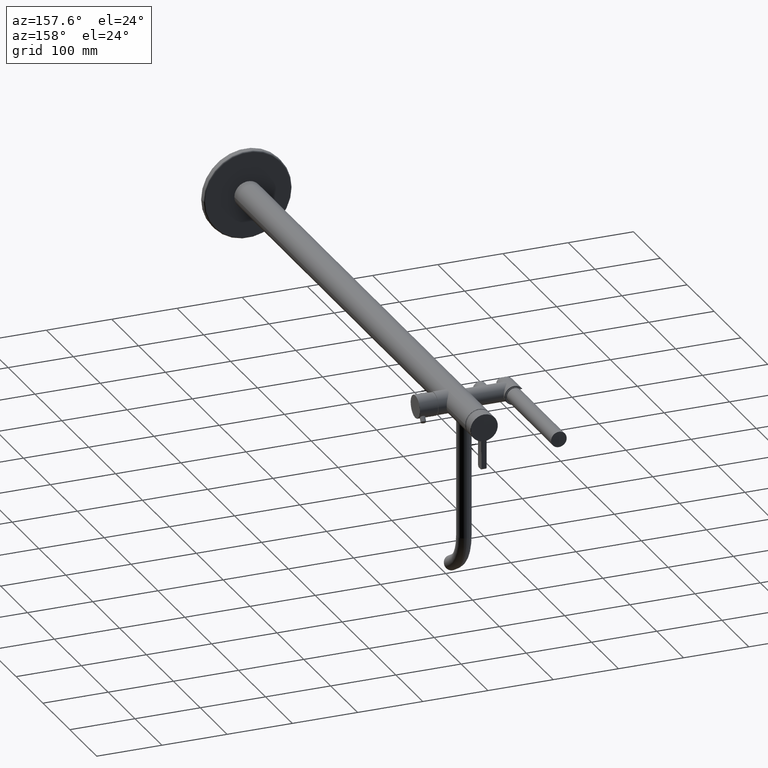
[diagram: clean part render]
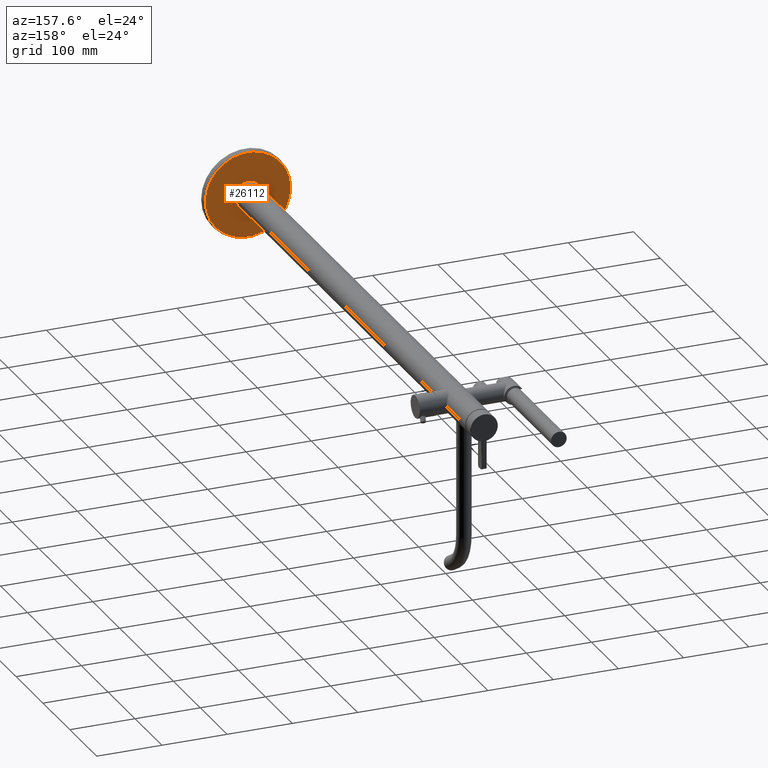
[diagram: same view with one face highlighted and labeled with its STEP entity id]
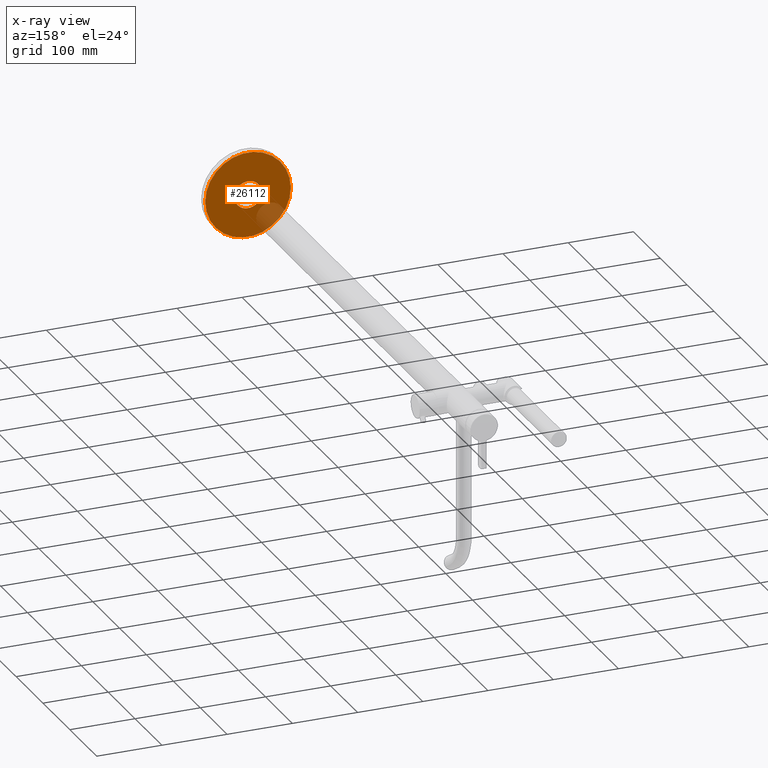
[diagram: x-ray of the same camera — body ghosted, the highlighted face saturated]
A machine part, auxiliary view. The second image highlights one B-rep face of the part: STEP entity #26112.
The next image is the same camera in x-ray: the body ghosted, the highlighted face saturated — about 10% of this face is hidden behind the body in this view.
In plain terms, the highlighted planar face has unit normal (0, -1, 0).
Its self-contained STEP definition (entity closure, byte-faithful):
#10192=CARTESIAN_POINT('',(0.E0,6.45E1,0.E0));
#10193=DIRECTION('',(0.E0,-1.E0,0.E0));
#10194=DIRECTION('',(1.E0,0.E0,0.E0));
#10195=AXIS2_PLACEMENT_3D('',#10192,#10193,#10194);
#10433=CARTESIAN_POINT('',(0.E0,6.45E1,0.E0));
#10434=DIRECTION('',(0.E0,1.E0,0.E0));
#10435=DIRECTION('',(1.E0,0.E0,0.E0));
#10436=AXIS2_PLACEMENT_3D('',#10433,#10434,#10435);
#10438=CARTESIAN_POINT('',(0.E0,6.45E1,0.E0));
#10439=DIRECTION('',(0.E0,1.E0,0.E0));
#10440=DIRECTION('',(-1.E0,0.E0,0.E0));
#10441=AXIS2_PLACEMENT_3D('',#10438,#10439,#10440);
#10659=CARTESIAN_POINT('',(0.E0,6.45E1,0.E0));
#10660=DIRECTION('',(0.E0,-1.E0,0.E0));
#10661=DIRECTION('',(-1.E0,0.E0,0.E0));
#10662=AXIS2_PLACEMENT_3D('',#10659,#10660,#10661);
#19351=CARTESIAN_POINT('',(6.55E1,6.45E1,0.E0));
#19352=CARTESIAN_POINT('',(-6.55E1,6.45E1,-1.604286306883E-14));
#19353=VERTEX_POINT('',#19351);
#19354=VERTEX_POINT('',#19352);
#20286=CARTESIAN_POINT('',(2.1E1,6.45E1,0.E0));
#20287=CARTESIAN_POINT('',(-2.1E1,6.45E1,0.E0));
#20288=VERTEX_POINT('',#20286);
#20289=VERTEX_POINT('',#20287);
#26096=CARTESIAN_POINT('',(0.E0,6.45E1,0.E0));
#26097=DIRECTION('',(0.E0,-1.E0,0.E0));
#26098=DIRECTION('',(-1.E0,0.E0,0.E0));
#26099=AXIS2_PLACEMENT_3D('',#26096,#26097,#26098);
#26100=PLANE('',#26099);
#26102=ORIENTED_EDGE('',*,*,#26101,.F.);
#26104=ORIENTED_EDGE('',*,*,#26103,.F.);
#26105=EDGE_LOOP('',(#26102,#26104));
#26106=FACE_OUTER_BOUND('',#26105,.F.);
#26107=ORIENTED_EDGE('',*,*,#26074,.F.);
#26109=ORIENTED_EDGE('',*,*,#26108,.F.);
#26110=EDGE_LOOP('',(#26107,#26109));
#26111=FACE_BOUND('',#26110,.F.);
#26112=ADVANCED_FACE('',(#26106,#26111),#26100,.F.);
#10196=CIRCLE('',#10195,2.1E1);
#10437=CIRCLE('',#10436,6.55E1);
#10442=CIRCLE('',#10441,6.55E1);
#10663=CIRCLE('',#10662,2.1E1);
#26074=EDGE_CURVE('',#20288,#20289,#10196,.T.);
#26101=EDGE_CURVE('',#19353,#19354,#10437,.T.);
#26103=EDGE_CURVE('',#19354,#19353,#10442,.T.);
#26108=EDGE_CURVE('',#20289,#20288,#10663,.T.);